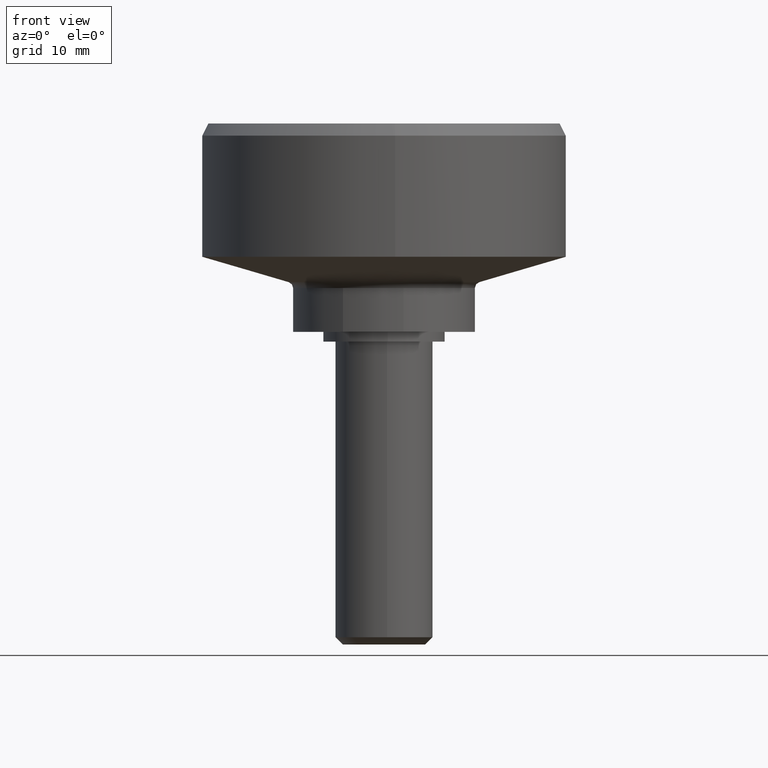
[diagram: clean part render]
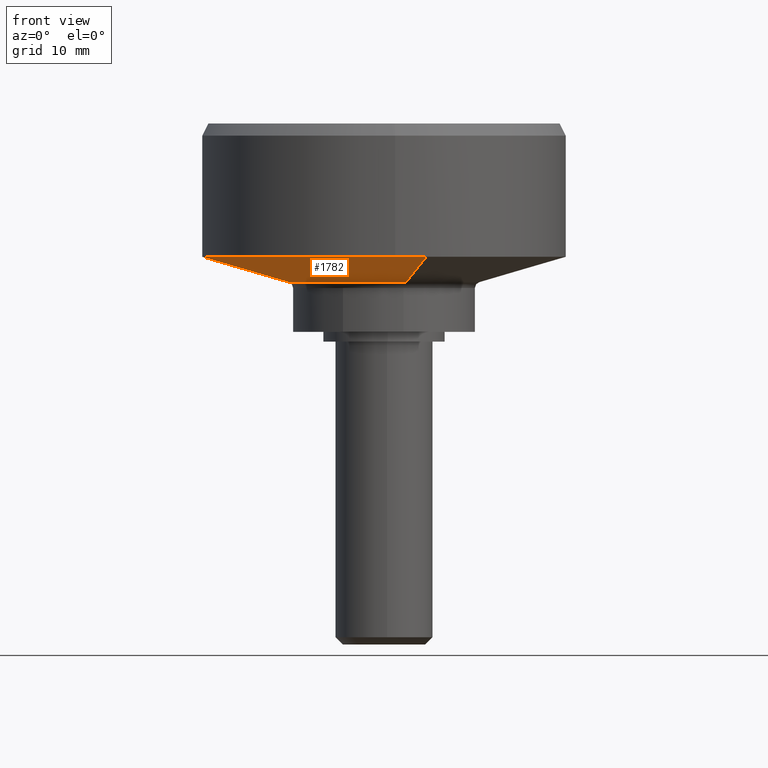
[diagram: same view with one face highlighted and labeled with its STEP entity id]
A machine part, front view. The second image highlights one B-rep face of the part: STEP entity #1782.
In plain terms, the highlighted face is a freeform B-spline surface patch.
Its self-contained STEP definition (entity closure, byte-faithful):
#1639=CARTESIAN_POINT('',(-2.217238409206185,7.353742608602670,4.853019931861940));
#1640=CARTESIAN_POINT('',(-9.161770537785026,5.259885889788684,4.853019931861941));
#1641=CARTESIAN_POINT('',(-7.468514818195044,-1.793031769723730,4.853019931861940));
#1642=CARTESIAN_POINT('',(-5.675483048471316,-9.261546587918774,4.853019931861940));
#1643=CARTESIAN_POINT('',(1.793031769723730,-7.468514818195044,4.853019931861940));
#1644=CARTESIAN_POINT('',(-4.382952147342879,14.536597338182169,7.053674501703453));
#1645=CARTESIAN_POINT('',(-18.110637848107675,10.397541400918421,7.053674501703453));
#1646=CARTESIAN_POINT('',(-14.763474655659399,-3.544396675041461,7.053674501703453));
#1647=CARTESIAN_POINT('',(-11.219077980617936,-18.307871330700859,7.053674501703454));
#1648=CARTESIAN_POINT('',(3.544396675041461,-14.763474655659399,7.053674501703453));
#1656=(BOUNDED_SURFACE()B_SPLINE_SURFACE(2,1,((#1639,#1644),(#1640,#1645),(#1641,#1646),(#1642,#1647),(#1643,#1648)),.UNSPECIFIED.,.F.,.F.,.U.)B_SPLINE_SURFACE_WITH_KNOTS((3,2,3),(2,2),(0.0,24.149748155597461,49.305735817678148),(0.0,7.818350119914104),.UNSPECIFIED.)GEOMETRIC_REPRESENTATION_ITEM()RATIONAL_B_SPLINE_SURFACE(((0.977505800795127,0.977505800795127),(0.718822509939086,0.718822509939086),(1.0,1.0),(0.707106781186548,0.707106781186548),(1.0,1.0)))REPRESENTATION_ITEM('')SURFACE());
#1657=CARTESIAN_POINT('',(-15.0,0.0,7.0));
#1658=VERTEX_POINT('',#1657);
#1659=CARTESIAN_POINT('',(-4.330129861055601,14.361405759410360,7.000000000000298));
#1660=VERTEX_POINT('',#1659);
#1661=CARTESIAN_POINT('',(-15.0,0.0,7.0));
#1662=CARTESIAN_POINT('',(-14.999999999999998,11.144316563802313,7.0));
#1663=CARTESIAN_POINT('',(-4.330129861055601,14.361405759410358,7.000000000000298));
#1671=(BOUNDED_CURVE()B_SPLINE_CURVE(2,(#1661,#1662,#1663),.UNSPECIFIED.,.F.,.U.)B_SPLINE_CURVE_WITH_KNOTS((3,3),(0.0,0.200860796532399),.UNSPECIFIED.)CURVE()GEOMETRIC_REPRESENTATION_ITEM()RATIONAL_B_SPLINE_CURVE((1.0,0.764676939080767,0.907491297830969))REPRESENTATION_ITEM(''));
#1672=EDGE_CURVE('',#1658,#1660,#1671,.T.);
#1673=ORIENTED_EDGE('',*,*,#1672,.T.);
#1674=CARTESIAN_POINT('',(-2.268775112510712,7.524670393638881,4.905386708626956));
#1675=VERTEX_POINT('',#1674);
#1676=CARTESIAN_POINT('',(-2.268775112510712,7.524670393638881,4.905386708626956));
#1677=CARTESIAN_POINT('',(-4.330129861055601,14.361405759410360,7.000000000000298));
#1678=QUASI_UNIFORM_CURVE('',1,(#1676,#1677),.UNSPECIFIED.,.F.,.U.);
#1679=EDGE_CURVE('',#1675,#1660,#1678,.T.);
#1680=ORIENTED_EDGE('',*,*,#1679,.F.);
#1681=CARTESIAN_POINT('',(-3.185418617410837,7.184783912221738,4.905385299377503));
#1682=VERTEX_POINT('',#1681);
#1683=CARTESIAN_POINT('',(-3.185418617410837,7.184783912221739,4.905385299377503));
#1684=CARTESIAN_POINT('',(-2.737687165878642,7.383288212065284,4.905385998990518));
#1685=CARTESIAN_POINT('',(-2.268775112510712,7.524670393638881,4.905386708626957));
#1693=(BOUNDED_CURVE()B_SPLINE_CURVE(2,(#1683,#1684,#1685),.UNSPECIFIED.,.F.,.U.)B_SPLINE_CURVE_WITH_KNOTS((3,3),(0.181175101877542,0.200860798448642),.UNSPECIFIED.)CURVE()GEOMETRIC_REPRESENTATION_ITEM()RATIONAL_B_SPLINE_CURVE((0.883129907827973,0.893494541348023,0.907491300555911))REPRESENTATION_ITEM(''));
#1694=EDGE_CURVE('',#1682,#1675,#1693,.T.);
#1695=ORIENTED_EDGE('',*,*,#1694,.F.);
#1696=CARTESIAN_POINT('',(-7.859262000000000,0.0,4.905388000000000));
#1697=VERTEX_POINT('',#1696);
#1698=CARTESIAN_POINT('',(-7.859262000000000,0.0,4.905388000000000));
#1699=CARTESIAN_POINT('',(-7.859262160498600,5.112605885559352,4.905386649688753));
#1700=CARTESIAN_POINT('',(-3.185418617410837,7.184783912221739,4.905385299377503));
#1708=(BOUNDED_CURVE()B_SPLINE_CURVE(2,(#1698,#1699,#1700),.UNSPECIFIED.,.F.,.U.)B_SPLINE_CURVE_WITH_KNOTS((3,3),(0.0,0.181175101877542),.UNSPECIFIED.)CURVE()GEOMETRIC_REPRESENTATION_ITEM()RATIONAL_B_SPLINE_CURVE((1.0,0.787740164968926,0.883129907827973))REPRESENTATION_ITEM(''));
#1709=EDGE_CURVE('',#1697,#1682,#1708,.T.);
#1710=ORIENTED_EDGE('',*,*,#1709,.F.);
#1711=CARTESIAN_POINT('',(-7.504531387975119,-2.334527849778683,4.905385299396691));
#1712=VERTEX_POINT('',#1711);
#1713=CARTESIAN_POINT('',(-7.504531387975120,-2.334527849778683,4.905385299396693));
#1714=CARTESIAN_POINT('',(-7.859262378150063,-1.194214632795255,4.905386649698345));
#1715=CARTESIAN_POINT('',(-7.859262000000000,0.0,4.905388000000000));
#1723=(BOUNDED_CURVE()B_SPLINE_CURVE(2,(#1713,#1714,#1715),.UNSPECIFIED.,.F.,.U.)B_SPLINE_CURVE_WITH_KNOTS((3,3),(0.949458637681295,1.0),.UNSPECIFIED.)CURVE()GEOMETRIC_REPRESENTATION_ITEM()RATIONAL_B_SPLINE_CURVE((0.905515822342278,0.940787110829030,1.0))REPRESENTATION_ITEM(''));
#1724=EDGE_CURVE('',#1712,#1697,#1723,.T.);
#1725=ORIENTED_EDGE('',*,*,#1724,.F.);
#1726=CARTESIAN_POINT('',(1.834708243734995,-7.642109825487701,4.905387337025470));
#1727=VERTEX_POINT('',#1726);
#1728=CARTESIAN_POINT('',(1.834708243734995,-7.642109825487701,4.905387337025471));
#1729=CARTESIAN_POINT('',(0.930204749524986,-7.859262121587480,4.905386604338832));
#1730=CARTESIAN_POINT('',(-0.000000435609949,-7.859262135510602,4.905386444520069));
#1731=CARTESIAN_POINT('',(-5.785883555589410,-7.859262222112526,4.905385450446178));
#1732=CARTESIAN_POINT('',(-7.504531387975120,-2.334527849778683,4.905385299396693));
#1740=(BOUNDED_CURVE()B_SPLINE_CURVE(2,(#1728,#1729,#1730,#1731,#1732),.UNSPECIFIED.,.F.,.U.)B_SPLINE_CURVE_WITH_KNOTS((3,2,3),(0.710109822896078,0.750000000000000,0.949458637681295),.UNSPECIFIED.)CURVE()GEOMETRIC_REPRESENTATION_ITEM()RATIONAL_B_SPLINE_CURVE((0.921445400941842,0.953265750515975,1.0,0.766319670357518,0.905515822342278))REPRESENTATION_ITEM(''));
#1741=EDGE_CURVE('',#1727,#1712,#1740,.T.);
#1742=ORIENTED_EDGE('',*,*,#1741,.F.);
#1743=CARTESIAN_POINT('',(3.501680457843599,-14.585548805964590,7.000000000000187));
#1744=VERTEX_POINT('',#1743);
#1745=CARTESIAN_POINT('',(1.834708243734995,-7.642109825487701,4.905387337025470));
#1746=CARTESIAN_POINT('',(3.501680457843599,-14.585548805964590,7.000000000000187));
#1747=QUASI_UNIFORM_CURVE('',1,(#1745,#1746),.UNSPECIFIED.,.F.,.U.);
#1748=EDGE_CURVE('',#1727,#1744,#1747,.T.);
#1749=ORIENTED_EDGE('',*,*,#1748,.T.);
#1750=CARTESIAN_POINT('',(0.915720432554185,-14.972022444858400,7.0));
#1751=VERTEX_POINT('',#1750);
#1752=CARTESIAN_POINT('',(3.501680457843599,-14.585548805964594,7.000000000000187));
#1753=CARTESIAN_POINT('',(2.225606526092362,-14.891907051994165,6.999999999999999));
#1754=CARTESIAN_POINT('',(0.915720432554185,-14.972022444858407,7.0));
#1762=(BOUNDED_CURVE()B_SPLINE_CURVE(2,(#1752,#1753,#1754),.UNSPECIFIED.,.F.,.U.)B_SPLINE_CURVE_WITH_KNOTS((3,3),(0.710109830387374,0.739333050525927),.UNSPECIFIED.)CURVE()GEOMETRIC_REPRESENTATION_ITEM()RATIONAL_B_SPLINE_CURVE((0.921445412893440,0.944756744901729,0.976072230882603))REPRESENTATION_ITEM(''));
#1763=EDGE_CURVE('',#1744,#1751,#1762,.T.);
#1764=ORIENTED_EDGE('',*,*,#1763,.T.);
#1765=CARTESIAN_POINT('',(0.915720432554185,-14.972022444858407,7.0));
#1766=CARTESIAN_POINT('',(0.458287608505043,-14.999999999999998,7.0));
#1767=CARTESIAN_POINT('',(0.0,-15.0,7.0));
#1768=CARTESIAN_POINT('',(-14.999999999999996,-14.999999999999996,6.999999999999999));
#1769=CARTESIAN_POINT('',(-15.0,0.0,7.0));
#1777=(BOUNDED_CURVE()B_SPLINE_CURVE(2,(#1765,#1766,#1767,#1768,#1769),.UNSPECIFIED.,.F.,.U.)B_SPLINE_CURVE_WITH_KNOTS((3,2,3),(0.739333050525927,0.750000000000000,1.0),.UNSPECIFIED.)CURVE()GEOMETRIC_REPRESENTATION_ITEM()RATIONAL_B_SPLINE_CURVE((0.976072230882603,0.987502891334473,1.0,0.707106781186547,1.0))REPRESENTATION_ITEM(''));
#1778=EDGE_CURVE('',#1751,#1658,#1777,.T.);
#1779=ORIENTED_EDGE('',*,*,#1778,.T.);
#1780=EDGE_LOOP('',(#1673,#1680,#1695,#1710,#1725,#1742,#1749,#1764,#1779));
#1781=FACE_OUTER_BOUND('',#1780,.T.);
#1782=ADVANCED_FACE('',(#1781),#1656,.T.);